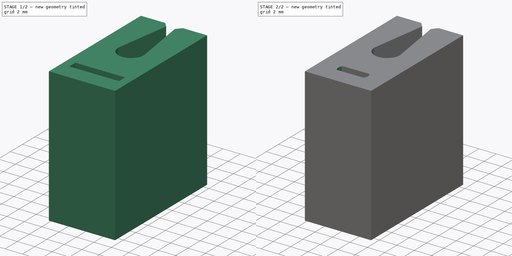
[diagram: build sequence overview — one tinted view per stage of 2, left to right]
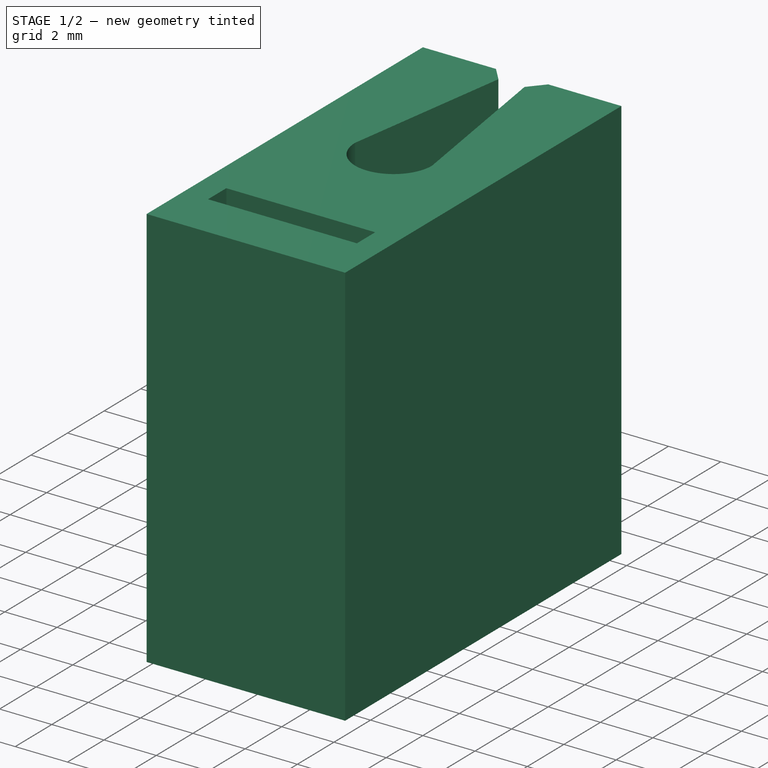
[diagram: stage 1 of 2 — iso view after this stage's code; geometry added in this stage tinted green]
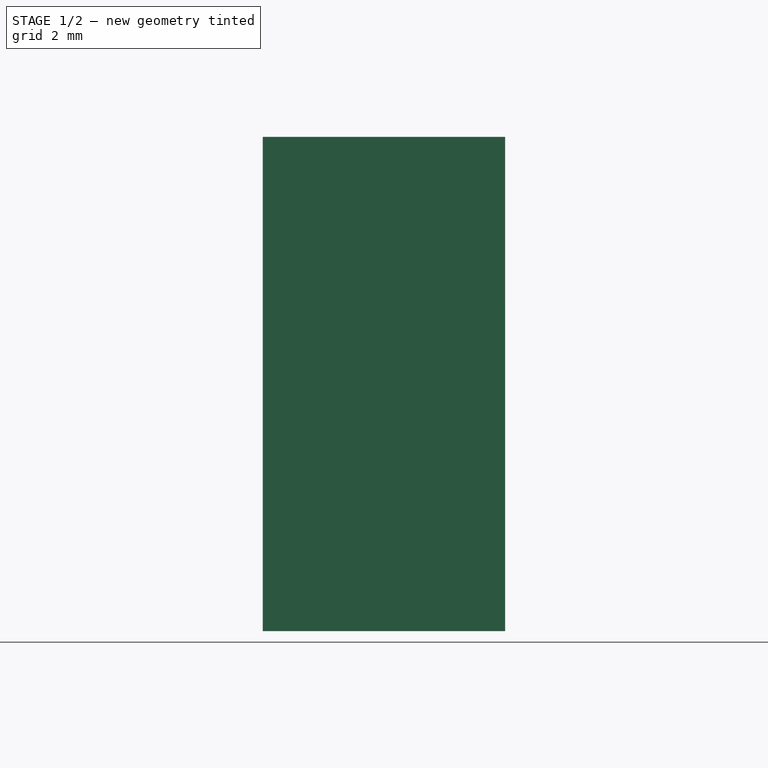
[diagram: stage 1 of 2 — front view after this stage's code; geometry added in this stage tinted green]
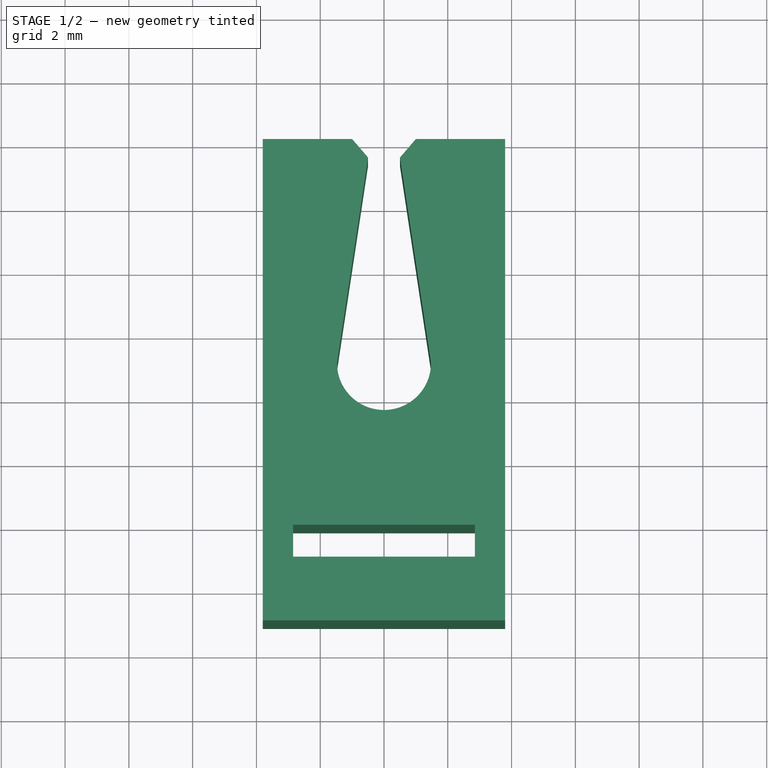
[diagram: stage 1 of 2 — top view after this stage's code; geometry added in this stage tinted green]
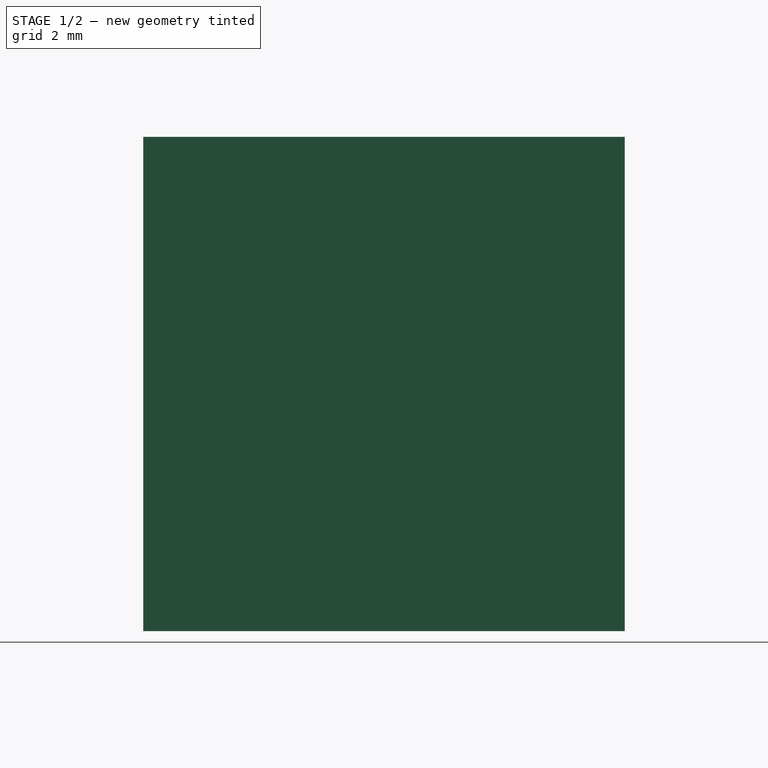
[diagram: stage 1 of 2 — right view after this stage's code; geometry added in this stage tinted green]
FCSTD DOCUMENT  (FreeCAD 1.1R39709 (Git))
Label: Адаптер
License: All rights reserved
LicenseURL: https://en.wikipedia.org/wiki/All_rights_reserved
objects: Sketcher::SketchObject×4, PartDesign::Pad×4, App::Point×2, PartDesign::Body×2
note: 22 computed .brp shape members not serialized (recipe doc carries the construction recipe); baked Part::Feature solids carry a one-line shape summary decoded from their .brp

FEATURE [PartDesign::Body] Body  label="Тело"
  AllowCompound = false
  Group = -> [Sketch,Pad,Sketch001,Pad001]
  Origin = -> Origin
  Tip = -> Pad001
FEATURE [App::Point] Origin003
  Role = Origin
FEATURE [Sketcher::SketchObject] Sketch002
  ArcFitTolerance = 1e-06
  AttachmentSupport = -> [XY_Plane001]
  ExternalTypes = [0]
  FullyConstrained = true
  MakeInternals = false
  MapMode = 5
  sketch-geometry (15):
    g0: LineSegment StartX=-3.8 StartY=0 StartZ=0 EndX=-3.8 EndY=-10.1 EndZ=0
    g1: LineSegment StartX=-3.8 StartY=-10.1 StartZ=0 EndX=3.8 EndY=-10.1 EndZ=0
    g2: LineSegment StartX=3.8 StartY=-10.1 StartZ=0 EndX=3.8 EndY=0 EndZ=0
    g3: LineSegment StartX=3.8 StartY=0 StartZ=0 EndX=1 EndY=0 EndZ=0
    g4: ArcOfCircle CenterX=0 CenterY=-7.025 CenterZ=0 NormalX=0 NormalY=0 NormalZ=1 AngleXU=0 Radius=1.475 StartAngle=3.14159 EndAngle=6.28319
    g5: LineSegment StartX=-1.475 StartY=-7.025 StartZ=0 EndX=-0.5 EndY=-0.581347 EndZ=0
    g6: LineSegment StartX=1.475 StartY=-7.025 StartZ=0 EndX=0.5 EndY=-0.581347 EndZ=0
    g7: LineSegment StartX=-1 StartY=0 StartZ=0 EndX=-3.8 EndY=0 EndZ=0
    g8: ArcOfCircle [constr] CenterX=1 CenterY=-0.505691 CenterZ=0 NormalX=0 NormalY=0 NormalZ=1 AngleXU=0 Radius=0.505691 StartAngle=1.5708 EndAngle=3.29177
    g9: GeomPoint [constr] X=0.412035 Y=0 Z=0
    g10: LineSegment StartX=1 StartY=0 StartZ=0 EndX=0.5 EndY=-0.581347 EndZ=0
    g11: ArcOfCircle [constr] CenterX=-1 CenterY=-0.505691 CenterZ=0 NormalX=0 NormalY=0 NormalZ=1 AngleXU=0 Radius=0.505691 StartAngle=6.13301 EndAngle=7.85398
    g12: GeomPoint [constr] X=-0.412035 Y=0 Z=0
    g13: LineSegment StartX=-0.5 StartY=-0.581347 StartZ=0 EndX=-1 EndY=0 EndZ=0
    g14: GeomPoint X=0 Y=-8.5 Z=0
  constraints (37):
    c: Coincident(g0,g1)
    c: Coincident(g1,g2)
    c: Coincident(g2,g3)
    c: Coincident(g7,g0)
    c: Vertical(g0)
    c: Vertical(g2)
    c: Horizontal(g1)
    c: Coincident(g5,g4)
    c: Coincident(g6,g4)
    c: Horizontal(g7)
    c: Horizontal(g4,g4)
    c: Horizontal(g4,g4)
    c: PointOnObject(g4,g-2)
    c: Symmetric(g9,g12,g-2)
    c: PointOnObject(g9,g3)
    c: PointOnObject(g9,g6)
    c: Tangent(g3,g8) = -1.5708
    c: Tangent(g6,g8) = 1.5708
    c: Coincident(g10,g3)
    c: Coincident(g10,g6)
    c: PointOnObject(g12,g7)
    c: Tangent(g5,g11) = -1.5708
    c: Tangent(g7,g11) = -1.5708
    c: Coincident(g13,g5)
    c: Coincident(g13,g7)
    c: DistanceX(g7,g3) = 2
    c: Symmetric(g5,g6,g-2)
    c: DistanceX(g5,g6) = 1
    c: PointOnObject(g14,g4)
    c: PointOnObject(g14,g-2)
    c: DistanceY(g14,g7) = 8.5
    c: Horizontal(g3)
    c: DistanceX(g7,g7) = 2.8
    c: Equal(g3,g7)
    c: DistanceY(g0,g14) = 1.6
    c: PointOnObject(g2,g-1)
    c: DistanceX(g4,g4) = 2.95
FEATURE [PartDesign::Pad] Pad002
  Direction = (0,0,1)
  Length = 15.5
  Length2 = 10
  Profile = -> Sketch002
  ReferenceAxis = -> Sketch002 [N_Axis]
  Refine = true
  Suppressed = false
  Type = 0
FEATURE [Sketcher::SketchObject] Sketch003
  ArcFitTolerance = 1e-06
  AttachmentSupport = -> [XY_Plane001]
  ExternalGeometry = -> [Pad002]
  ExternalTypes = [0]
  FullyConstrained = true
  MakeInternals = false
  MapMode = 5
  sketch-geometry (9):
    g0: LineSegment StartX=-3.8 StartY=-10.1 StartZ=0 EndX=-3.8 EndY=-15.1 EndZ=0
    g1: LineSegment StartX=-3.8 StartY=-15.1 StartZ=0 EndX=3.8 EndY=-15.1 EndZ=0
    g2: LineSegment StartX=3.8 StartY=-15.1 StartZ=0 EndX=3.8 EndY=-10.1 EndZ=0
    g3: LineSegment StartX=3.8 StartY=-10.1 StartZ=0 EndX=-3.8 EndY=-10.1 EndZ=0
    g4: LineSegment StartX=-2.85 StartY=-12.1 StartZ=0 EndX=-2.85 EndY=-13.1 EndZ=0
    g5: LineSegment StartX=-2.85 StartY=-13.1 StartZ=0 EndX=2.85 EndY=-13.1 EndZ=0
    g6: LineSegment StartX=2.85 StartY=-13.1 StartZ=0 EndX=2.85 EndY=-12.1 EndZ=0
    g7: LineSegment StartX=2.85 StartY=-12.1 StartZ=0 EndX=-2.85 EndY=-12.1 EndZ=0
    g8: GeomPoint X=0 Y=-12.6 Z=0
  constraints (22):
    c: Coincident(g0,g1)
    c: Coincident(g1,g2)
    c: Vertical(g0)
    c: Vertical(g2)
    c: Horizontal(g1)
    c: DistanceY(g2,g2) = 5
    c: Coincident(g3,g0)
    c: Coincident(g3,g2)
    c: Coincident(g0,g-3)
    c: Coincident(g2,g-3)
    c: Coincident(g4,g5)
    c: Coincident(g5,g6)
    c: Coincident(g6,g7)
    c: Coincident(g7,g4)
    c: Vertical(g4)
    c: Vertical(g6)
    c: Horizontal(g5)
    c: Horizontal(g7)
    c: DistanceX(g7,g7) = 5.7
    c: DistanceY(g4,g4) = 1
    c: Symmetric(g0,g2,g8)
    c: Symmetric(g4,g6,g8)
FEATURE [PartDesign::Pad] Pad003
  BaseFeature = -> Pad002
  Direction = (0,0,1)
  Length = 15
  Length2 = 10
  Profile = -> Sketch003
  ReferenceAxis = -> Sketch003 [N_Axis]
  Refine = true
  Suppressed = false
  Type = 3
  UpToFace = -> Pad002 [Face12]
FEATURE [PartDesign::Body] Body001  label="Тело001"
  AllowCompound = false
  Group = -> [Sketch002,Pad002,Sketch003,Pad003]
  Origin = -> Origin002
  Placement = pos=(14,0,0) rot=(0,0,1;0rad)
  Tip = -> Pad003
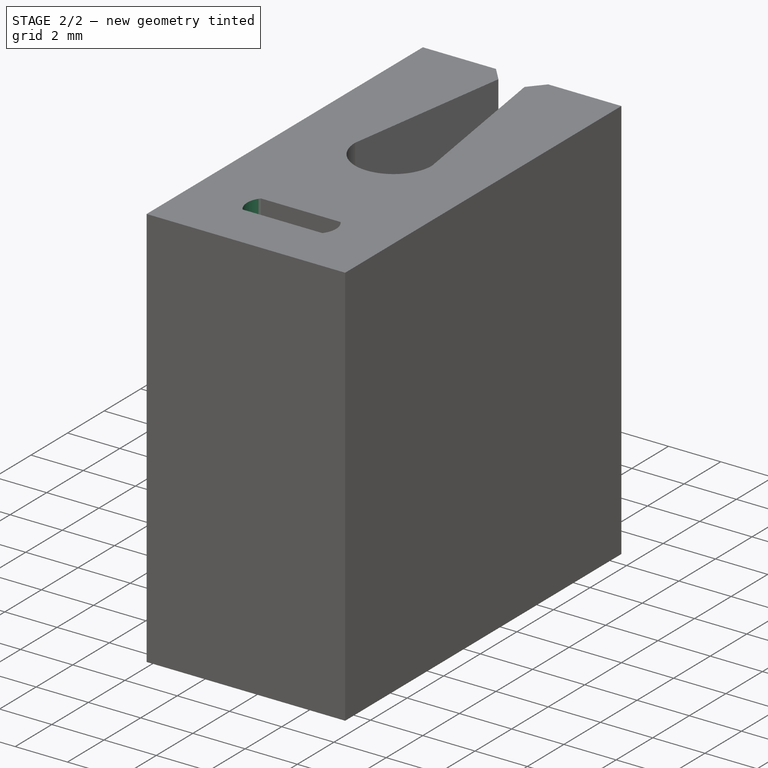
[diagram: stage 2 of 2 — iso view after this stage's code; geometry added in this stage tinted green]
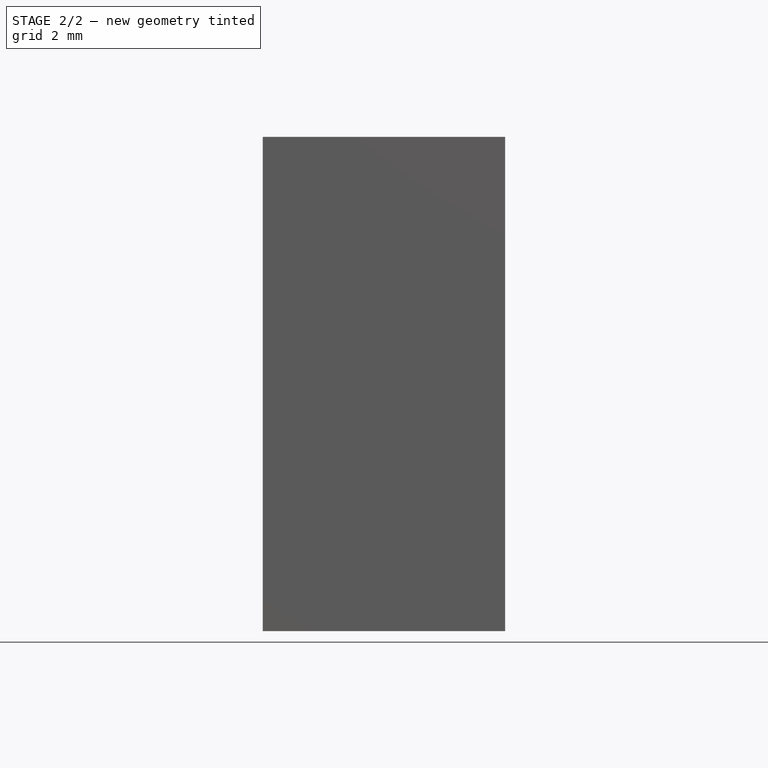
[diagram: stage 2 of 2 — front view after this stage's code; geometry added in this stage tinted green]
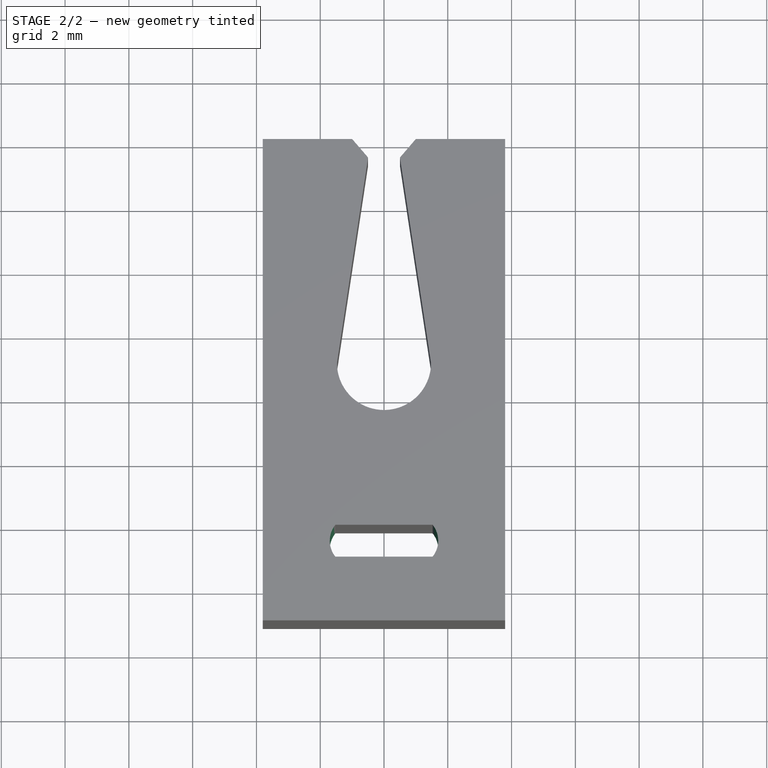
[diagram: stage 2 of 2 — top view after this stage's code; geometry added in this stage tinted green]
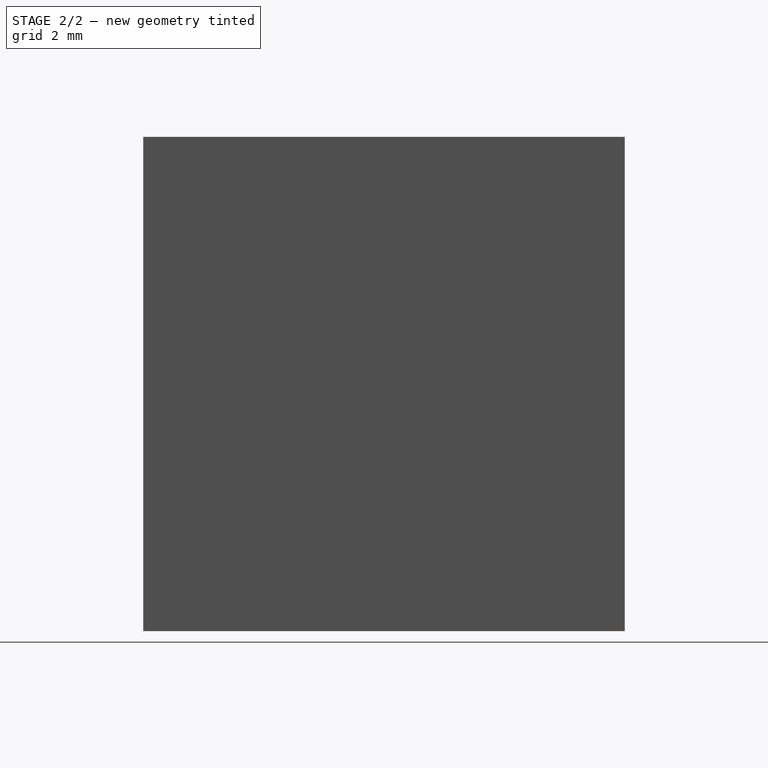
[diagram: stage 2 of 2 — right view after this stage's code; geometry added in this stage tinted green]
FEATURE [App::Point] Origin001
  Role = Origin
FEATURE [Sketcher::SketchObject] Sketch
  ArcFitTolerance = 1e-06
  AttachmentSupport = -> [XY_Plane]
  ExternalTypes = [0]
  FullyConstrained = true
  MakeInternals = false
  MapMode = 5
  sketch-geometry (15):
    g0: LineSegment StartX=-3.4 StartY=0 StartZ=0 EndX=-3.4 EndY=-10.1 EndZ=0
    g1: LineSegment StartX=-3.4 StartY=-10.1 StartZ=0 EndX=3.4 EndY=-10.1 EndZ=0
    g2: LineSegment StartX=3.4 StartY=-10.1 StartZ=0 EndX=3.4 EndY=0 EndZ=0
    g3: LineSegment StartX=3.4 StartY=0 StartZ=0 EndX=1 EndY=0 EndZ=0
    g4: ArcOfCircle CenterX=0 CenterY=-7.025 CenterZ=0 NormalX=0 NormalY=0 NormalZ=1 AngleXU=0 Radius=1.475 StartAngle=3.14159 EndAngle=6.28319
    g5: LineSegment StartX=-1.475 StartY=-7.025 StartZ=0 EndX=-0.5 EndY=-0.581347 EndZ=0
    g6: LineSegment StartX=1.475 StartY=-7.025 StartZ=0 EndX=0.5 EndY=-0.581347 EndZ=0
    g7: LineSegment StartX=-1 StartY=0 StartZ=0 EndX=-3.4 EndY=0 EndZ=0
    g8: ArcOfCircle [constr] CenterX=1 CenterY=-0.505691 CenterZ=0 NormalX=0 NormalY=0 NormalZ=1 AngleXU=0 Radius=0.505691 StartAngle=1.5708 EndAngle=3.29177
    g9: GeomPoint [constr] X=0.412035 Y=0 Z=0
    g10: LineSegment StartX=1 StartY=0 StartZ=0 EndX=0.5 EndY=-0.581347 EndZ=0
    g11: ArcOfCircle [constr] CenterX=-1 CenterY=-0.505691 CenterZ=0 NormalX=0 NormalY=0 NormalZ=1 AngleXU=0 Radius=0.505691 StartAngle=6.13301 EndAngle=7.85398
    g12: GeomPoint [constr] X=-0.412035 Y=0 Z=0
    g13: LineSegment StartX=-0.5 StartY=-0.581347 StartZ=0 EndX=-1 EndY=0 EndZ=0
    g14: GeomPoint X=0 Y=-8.5 Z=0
  constraints (37):
    c: Coincident(g0,g1)
    c: Coincident(g1,g2)
    c: Coincident(g2,g3)
    c: Coincident(g7,g0)
    c: Vertical(g0)
    c: Vertical(g2)
    c: Horizontal(g1)
    c: Coincident(g5,g4)
    c: Coincident(g6,g4)
    c: Horizontal(g7)
    c: Horizontal(g4,g4)
    c: Horizontal(g4,g4)
    c: PointOnObject(g4,g-2)
    c: Symmetric(g9,g12,g-2)
    c: PointOnObject(g9,g3)
    c: PointOnObject(g9,g6)
    c: Tangent(g3,g8) = -1.5708
    c: Tangent(g6,g8) = 1.5708
    c: Coincident(g10,g3)
    c: Coincident(g10,g6)
    c: PointOnObject(g12,g7)
    c: Tangent(g5,g11) = -1.5708
    c: Tangent(g7,g11) = -1.5708
    c: Coincident(g13,g5)
    c: Coincident(g13,g7)
    c: DistanceX(g7,g3) = 2
    c: Symmetric(g5,g6,g-2)
    c: DistanceX(g5,g6) = 1
    c: PointOnObject(g14,g4)
    c: PointOnObject(g14,g-2)
    c: DistanceY(g14,g7) = 8.5
    c: Horizontal(g3)
    c: DistanceX(g7,g7) = 2.4
    c: Equal(g3,g7)
    c: DistanceY(g0,g14) = 1.6
    c: PointOnObject(g2,g-1)
    c: DistanceX(g4,g4) = 2.95
FEATURE [PartDesign::Pad] Pad
  Direction = (0,0,1)
  Length = 15.5
  Length2 = 10
  Profile = -> Sketch
  ReferenceAxis = -> Sketch [N_Axis]
  Refine = true
  Suppressed = false
  Type = 0
FEATURE [Sketcher::SketchObject] Sketch001
  ArcFitTolerance = 1e-06
  AttachmentSupport = -> [XY_Plane]
  ExternalGeometry = -> [Pad]
  ExternalTypes = [0]
  FullyConstrained = true
  MakeInternals = false
  MapMode = 5
  sketch-geometry (11):
    g0: LineSegment StartX=-3.4 StartY=-10.1 StartZ=0 EndX=-3.4 EndY=-15.1 EndZ=0
    g1: LineSegment StartX=-3.4 StartY=-15.1 StartZ=0 EndX=3.4 EndY=-15.1 EndZ=0
    g2: LineSegment StartX=3.4 StartY=-15.1 StartZ=0 EndX=3.4 EndY=-10.1 EndZ=0
    g3: LineSegment StartX=3.4 StartY=-10.1 StartZ=0 EndX=-3.4 EndY=-10.1 EndZ=0
    g4: ArcOfCircle CenterX=-0.9 CenterY=-12.6 CenterZ=0 NormalX=0 NormalY=0 NormalZ=1 AngleXU=0 Radius=0.8 StartAngle=1.5708 EndAngle=4.71239
    g5: ArcOfCircle CenterX=0.9 CenterY=-12.6 CenterZ=0 NormalX=0 NormalY=0 NormalZ=1 AngleXU=0 Radius=0.8 StartAngle=4.71239 EndAngle=7.85398
    g6: LineSegment StartX=-0.9 StartY=-11.8 StartZ=0 EndX=0.9 EndY=-11.8 EndZ=0
    g7: LineSegment StartX=0.9 StartY=-13.4 StartZ=0 EndX=-0.9 EndY=-13.4 EndZ=0
    g8: GeomPoint X=-1.7 Y=-12.6 Z=0
    g9: GeomPoint X=1.7 Y=-12.6 Z=0
    g10: GeomPoint X=1.122e-13 Y=-12.6 Z=0
  constraints (24):
    c: Coincident(g0,g1)
    c: Coincident(g1,g2)
    c: Vertical(g0)
    c: Vertical(g2)
    c: Horizontal(g1)
    c: DistanceY(g2,g2) = 5
    c: Horizontal(g7)
    c: Horizontal(g6)
    c: Tangent(g6,g4) = 1.5708
    c: Tangent(g7,g4) = 1.5708
    c: Tangent(g7,g5) = 1.5708
    c: Tangent(g6,g5) = 1.5708
    c: PointOnObject(g8,g4)
    c: PointOnObject(g9,g5)
    c: Horizontal(g8,g4)
    c: Horizontal(g9,g5)
    c: DistanceX(g8,g9) = 3.4
    c: Distance(g5,g5) = 1.6
    c: Symmetric(g4,g5,g10)
    c: Symmetric(g0,g2,g10)
    c: Coincident(g3,g0)
    c: Coincident(g3,g2)
    c: Coincident(g0,g-3)
    c: Coincident(g2,g-3)
FEATURE [PartDesign::Pad] Pad001
  BaseFeature = -> Pad
  Direction = (0,0,1)
  Length = 15
  Length2 = 10
  Profile = -> Sketch001
  ReferenceAxis = -> Sketch001 [N_Axis]
  Refine = true
  Suppressed = false
  Type = 3
  UpToFace = -> Pad [Face12]
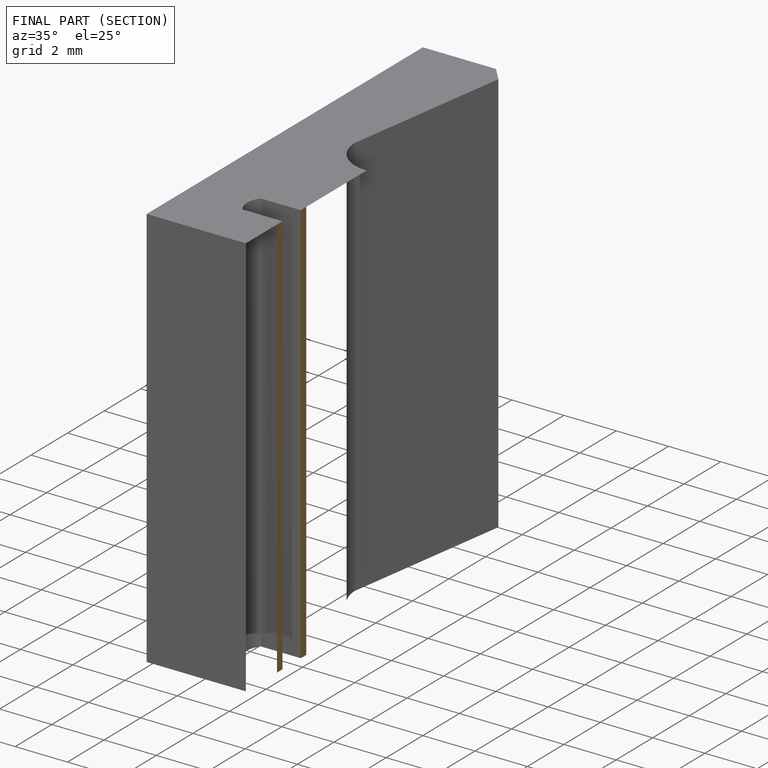
[diagram: finished part — half-section view (interior)]
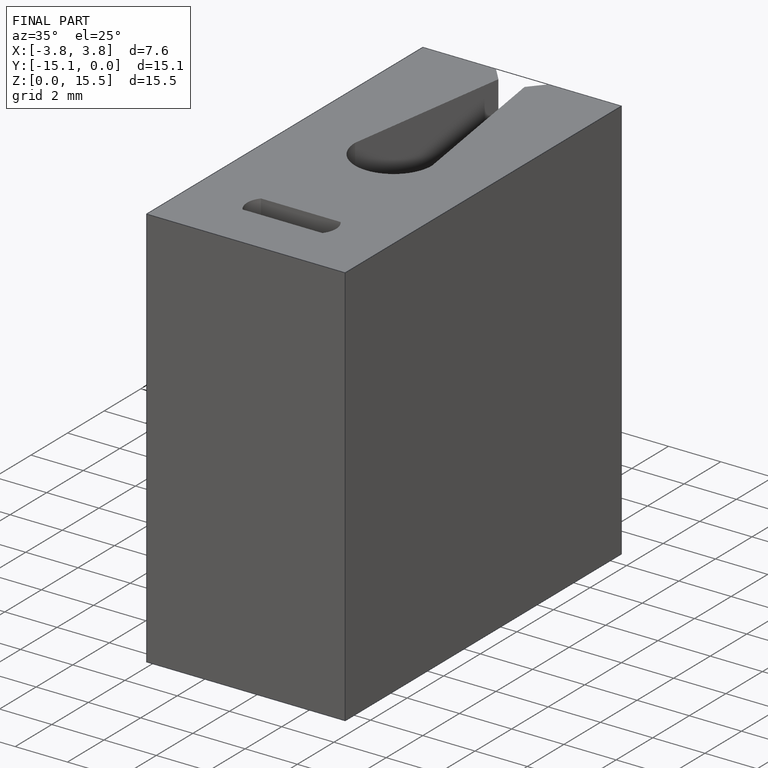
[diagram: finished part — iso view with bounding-box wireframe]
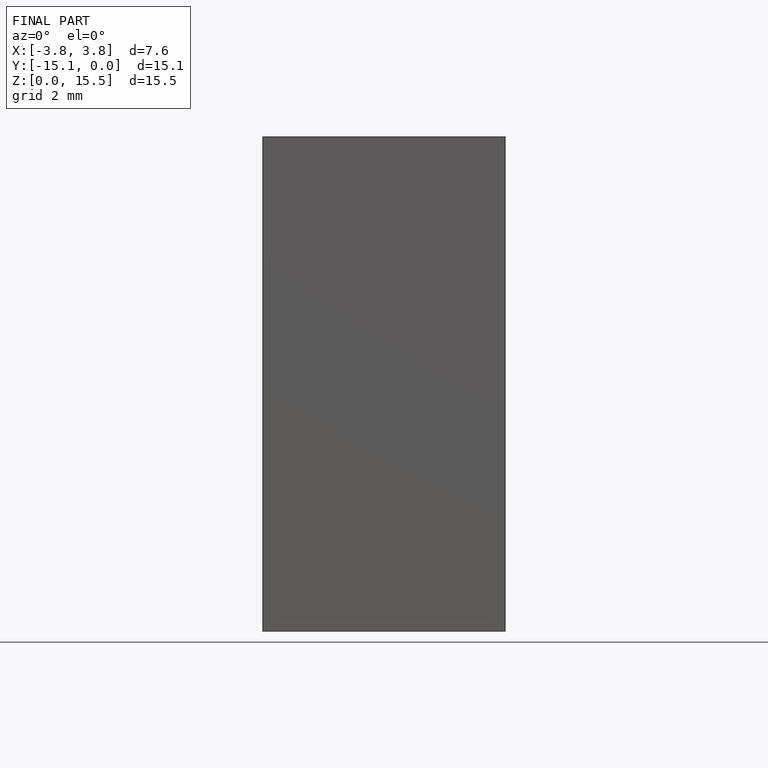
[diagram: finished part — front view with bounding-box wireframe]
